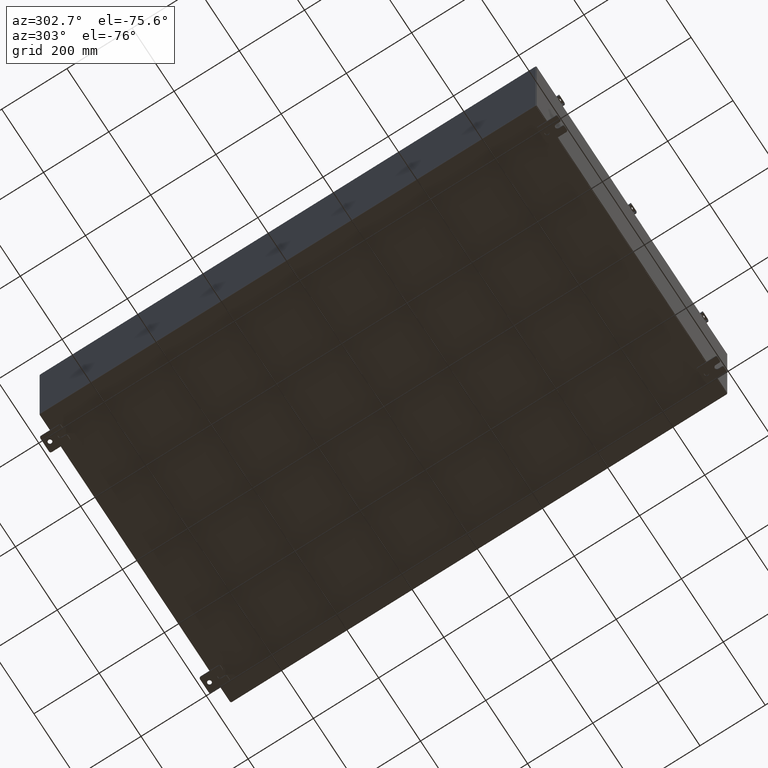
[diagram: clean part render]
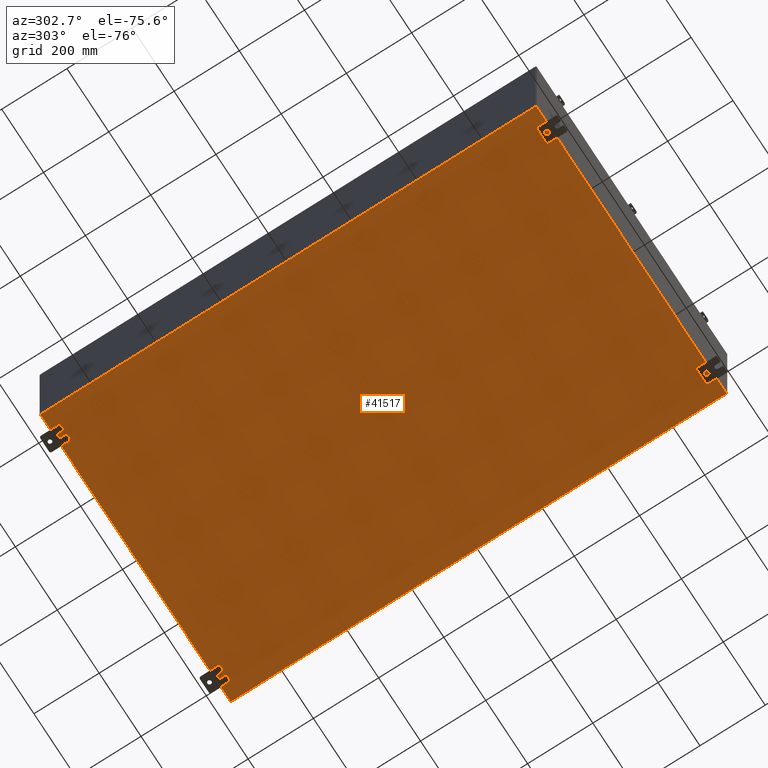
[diagram: same view with one face highlighted and labeled with its STEP entity id]
A machine part, auxiliary view. The second image highlights one B-rep face of the part: STEP entity #41517.
In plain terms, the highlighted planar face has unit normal (0, 0, -1).
Its self-contained STEP definition (entity closure, byte-faithful):
#819 = DIRECTION ( 'NONE',  ( -1.000000000000000000, -0.0000000000000000000, -0.0000000000000000000 ) ) ;
#2752 = CARTESIAN_POINT ( 'NONE',  ( 0.0000000000000000000, 0.0000000000000000000, -0.07470000000000000300 ) ) ;
#3051 = LINE ( 'NONE', #29932, #40333 ) ;
#3379 = EDGE_CURVE ( 'NONE', #41834, #9791, #15913, .T. ) ;
#7099 = ORIENTED_EDGE ( 'NONE', *, *, #46052, .F. ) ;
#7834 = DIRECTION ( 'NONE',  ( -1.000000000000000000, 0.0000000000000000000, -0.0000000000000000000 ) ) ;
#9653 = VERTEX_POINT ( 'NONE', #13012 ) ;
#9791 = VERTEX_POINT ( 'NONE', #13832 ) ;
#12313 = DIRECTION ( 'NONE',  ( -0.0000000000000000000, -1.000000000000000000, -0.0000000000000000000 ) ) ;
#12476 = PLANE ( 'NONE',  #37764 ) ;
#13012 = CARTESIAN_POINT ( 'NONE',  ( 17.91229999999999800, 29.92529999999999300, -0.07469999999999994700 ) ) ;
#13197 = CARTESIAN_POINT ( 'NONE',  ( -18.00000000000000400, -29.92530000000001100, -0.07470000000000000300 ) ) ;
#13832 = CARTESIAN_POINT ( 'NONE',  ( -17.91230000000000200, 29.92529999999998600, -0.07470000000000000300 ) ) ;
#15913 = LINE ( 'NONE', #22559, #40351 ) ;
#18002 = FACE_OUTER_BOUND ( 'NONE', #61752, .T. ) ;
#18685 = ORIENTED_EDGE ( 'NONE', *, *, #33600, .F. ) ;
#19258 = ORIENTED_EDGE ( 'NONE', *, *, #3379, .T. ) ;
#19650 = ORIENTED_EDGE ( 'NONE', *, *, #22899, .T. ) ;
#22559 = CARTESIAN_POINT ( 'NONE',  ( -17.91230000000000200, -29.92530000000002100, -0.07469999999999994700 ) ) ;
#22899 = EDGE_CURVE ( 'NONE', #9653, #46071, #38353, .T. ) ;
#23850 = VECTOR ( 'NONE', #12313, 39.37007874015748100 ) ;
#25231 = CARTESIAN_POINT ( 'NONE',  ( -17.91230000000000200, -29.92530000000001100, -0.07469999999999994700 ) ) ;
#27463 = DIRECTION ( 'NONE',  ( -0.0000000000000000000, 1.000000000000000000, -0.0000000000000000000 ) ) ;
#29932 = CARTESIAN_POINT ( 'NONE',  ( -18.00000000000000400, 29.92529999999998900, -0.07470000000000000300 ) ) ;
#33600 = EDGE_CURVE ( 'NONE', #41834, #46071, #44365, .T. ) ;
#34457 = VECTOR ( 'NONE', #42384, 39.37007874015748100 ) ;
#36615 = CARTESIAN_POINT ( 'NONE',  ( 17.91229999999999800, 29.92529999999999300, -0.07469999999999994700 ) ) ;
#36977 = DIRECTION ( 'NONE',  ( 0.0000000000000000000, 0.0000000000000000000, -1.000000000000000000 ) ) ;
#37764 = AXIS2_PLACEMENT_3D ( 'NONE', #2752, #36977, #7834 ) ;
#38353 = LINE ( 'NONE', #36615, #23850 ) ;
#40333 = VECTOR ( 'NONE', #819, 39.37007874015748100 ) ;
#40351 = VECTOR ( 'NONE', #27463, 39.37007874015748100 ) ;
#41517 = ADVANCED_FACE ( 'NONE', ( #18002 ), #12476, .T. ) ;
#41834 = VERTEX_POINT ( 'NONE', #25231 ) ;
#42384 = DIRECTION ( 'NONE',  ( 1.000000000000000000, 0.0000000000000000000, 0.0000000000000000000 ) ) ;
#44365 = LINE ( 'NONE', #13197, #34457 ) ;
#46052 = EDGE_CURVE ( 'NONE', #9653, #9791, #3051, .T. ) ;
#46071 = VERTEX_POINT ( 'NONE', #59322 ) ;
#59322 = CARTESIAN_POINT ( 'NONE',  ( 17.91229999999999800, -29.92530000000001100, -0.07470000000000000300 ) ) ;
#61752 = EDGE_LOOP ( 'NONE', ( #18685, #19258, #7099, #19650 ) ) ;